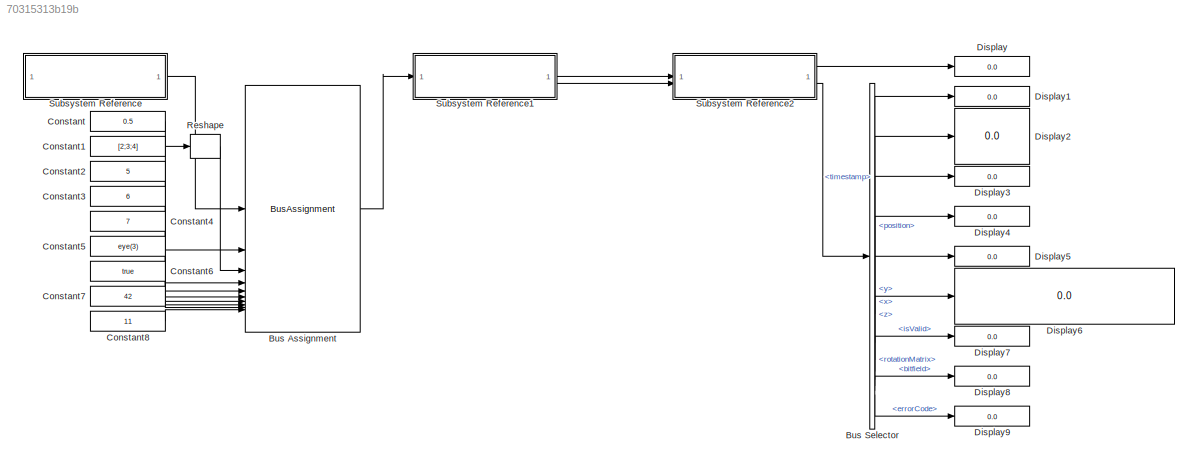
MODEL slx_70315313b19b
KIND model
CONFIG AbsTol = auto
CONFIG EnableMultiTasking = off
CONFIG FixedStep = 0.01
CONFIG MaxStep = auto
CONFIG MinStep = auto
CONFIG RelTol = 1e-3
CONFIG SampleTimeConstraint = Unconstrained
CONFIG SolverName = FixedStepAuto
CONFIG StartTime = 0.0
CONFIG StopTime = 0
BLOCK [BusAssignment] Bus Assignment
  AssignedSignals = timestamp,position,velocity.x,velocity.y,velocity.z,rotationMatrix,status.isValid,status.bitfield,status.errorCode
BLOCK [BusSelector] Bus Selector
  OutputSignals = timestamp,position,velocity.x,velocity.y,velocity.z,rotationMatrix,status.isValid,status.bitfield,status.errorCode
BLOCK [Constant] Constant
  Value = 0.5
BLOCK [Constant] Constant1
  Value = [2;3;4]
BLOCK [Constant] Constant2
  OutDataTypeStr = single
  Value = 5
BLOCK [Constant] Constant3
  OutDataTypeStr = single
  Value = 6
BLOCK [Constant] Constant4
  OutDataTypeStr = single
  Value = 7
BLOCK [Constant] Constant5
  Value = eye(3)
BLOCK [Constant] Constant6
  OutDataTypeStr = boolean
  Value = true
BLOCK [Constant] Constant7
  OutDataTypeStr = uint16
  Value = 42
BLOCK [Constant] Constant8
  OutDataTypeStr = uint8
  Value = 11
BLOCK [Display] Display
  Decimation = 1
BLOCK [Display] Display1
  Decimation = 1
  Format = long
BLOCK [Display] Display2
  Decimation = 1
  Format = long
BLOCK [Display] Display3
  Decimation = 1
  Format = long
BLOCK [Display] Display4
  Decimation = 1
  Format = long
BLOCK [Display] Display5
  Decimation = 1
  Format = long
BLOCK [Display] Display6
  Decimation = 1
BLOCK [Display] Display7
  Decimation = 1
  Format = long
BLOCK [Display] Display8
  Decimation = 1
  Format = long
BLOCK [Display] Display9
  Decimation = 1
  Format = long
BLOCK [Reshape] Reshape
  OutputDimensionality = Column vector (2-D)
BLOCK [SubSystem] Subsystem Reference
  ReferencedSubsystem = ExampleDefaultBus
BLOCK [SubSystem] Subsystem Reference1
  ReferencedSubsystem = ExamplePackBus
BLOCK [SubSystem] Subsystem Reference2
  ReferencedSubsystem = ExampleUnpackBus
LINE Bus Assignment:1 -> Subsystem Reference1:1
LINE Bus Selector:1 -> Display1:1
LINE Bus Selector:2 -> Display2:1
LINE Bus Selector:3 -> Display3:1
LINE Bus Selector:4 -> Display4:1
LINE Bus Selector:5 -> Display5:1
LINE Bus Selector:6 -> Display6:1
LINE Bus Selector:7 -> Display7:1
LINE Bus Selector:8 -> Display8:1
LINE Bus Selector:9 -> Display9:1
LINE Constant1:1 -> Reshape:1
LINE Constant2:1 -> Bus Assignment:4
LINE Constant3:1 -> Bus Assignment:5
LINE Constant4:1 -> Bus Assignment:6
LINE Constant5:1 -> Bus Assignment:7
LINE Constant6:1 -> Bus Assignment:8
LINE Constant7:1 -> Bus Assignment:9
LINE Constant8:1 -> Bus Assignment:10
LINE Constant:1 -> Bus Assignment:2
LINE Reshape:1 -> Bus Assignment:3
LINE Subsystem Reference1:1 -> Subsystem Reference2:1
LINE Subsystem Reference1:2 -> Subsystem Reference2:2
LINE Subsystem Reference2:1 -> Display:1
LINE Subsystem Reference2:2 -> Bus Selector:1
LINE Subsystem Reference:1 -> Bus Assignment:1
